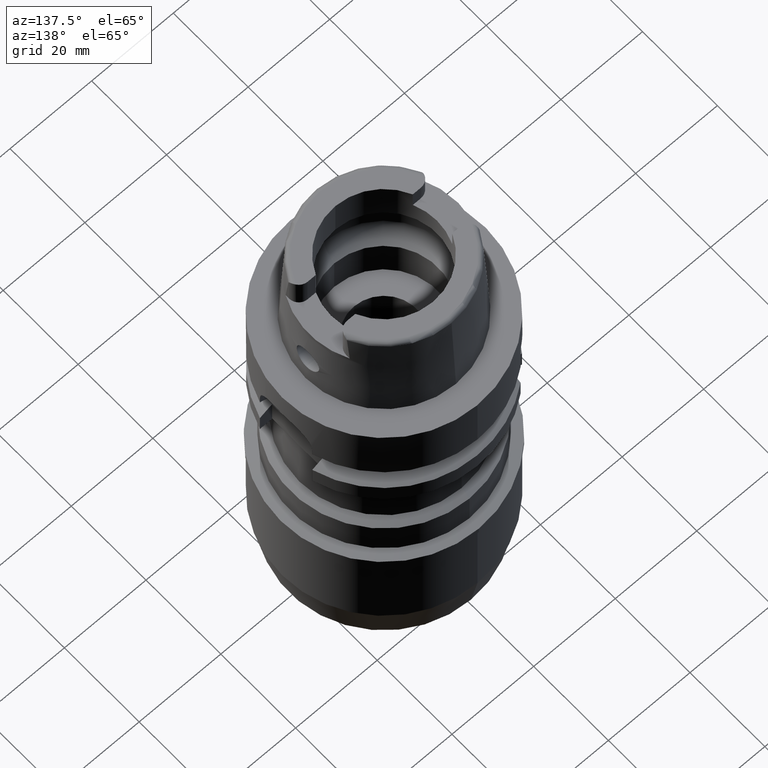
[diagram: clean part render]
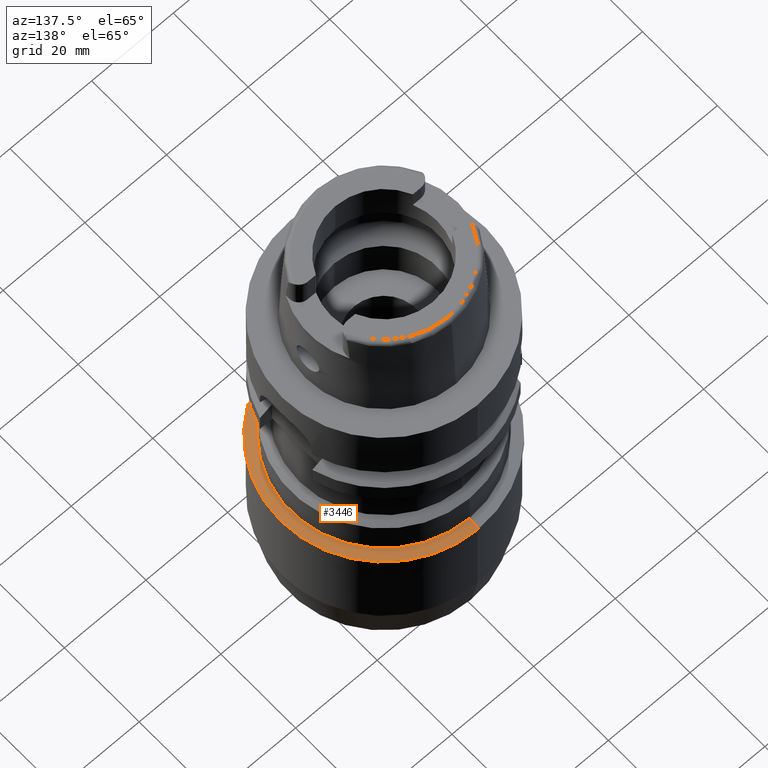
[diagram: same view with one face highlighted and labeled with its STEP entity id]
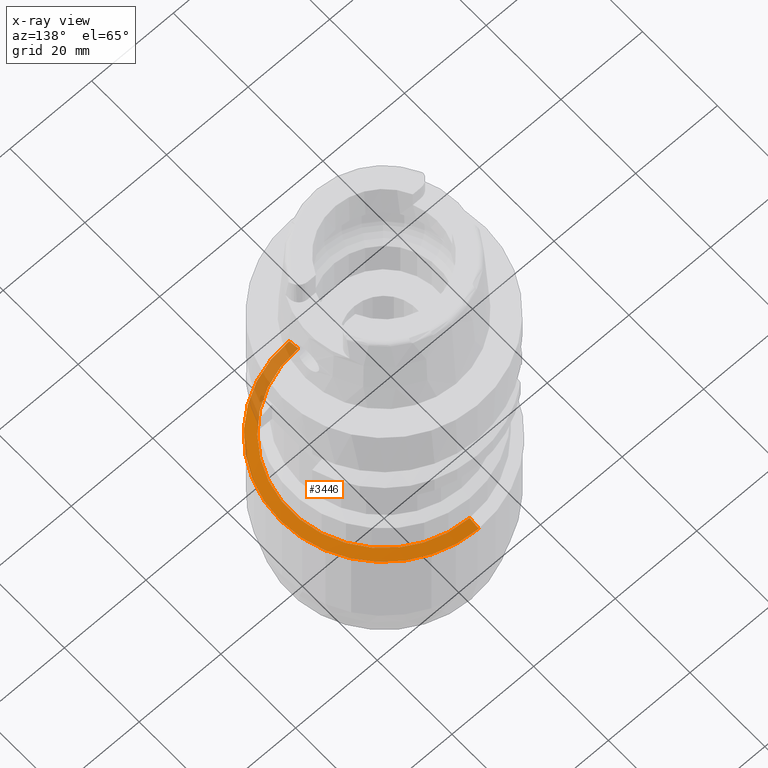
[diagram: x-ray of the same camera — body ghosted, the highlighted face saturated]
A machine part, auxiliary view. The second image highlights one B-rep face of the part: STEP entity #3446.
The next image is the same camera in x-ray: the body ghosted, the highlighted face saturated — about 19% of this face is hidden behind the body in this view.
In plain terms, the highlighted conical surface has half-angle 75 deg.
Its self-contained STEP definition (entity closure, byte-faithful):
#1089=DIRECTION('',(0.E0,9.659258262889E-1,-2.588190451032E-1));
#1090=VECTOR('',#1089,2.536426642006E0);
#1091=CARTESIAN_POINT('',(0.E0,2.29E1,-5.16E1));
#1092=LINE('',#1091,#1090);
#1096=CARTESIAN_POINT('',(0.E0,0.E0,-5.225647552146E1));
#1097=DIRECTION('',(0.E0,0.E0,-1.E0));
#1098=DIRECTION('',(0.E0,1.E0,0.E0));
#1099=AXIS2_PLACEMENT_3D('',#1096,#1097,#1098);
#1104=CARTESIAN_POINT('',(0.E0,0.E0,-5.16E1));
#1105=DIRECTION('',(0.E0,0.E0,1.E0));
#1106=DIRECTION('',(0.E0,-1.E0,0.E0));
#1107=AXIS2_PLACEMENT_3D('',#1104,#1105,#1106);
#1120=DIRECTION('',(0.E0,-9.659258262889E-1,-2.588190451032E-1));
#1121=VECTOR('',#1120,2.536426642006E0);
#1122=CARTESIAN_POINT('',(0.E0,-2.29E1,-5.16E1));
#1123=LINE('',#1122,#1121);
#2472=CARTESIAN_POINT('',(0.E0,2.535E1,-5.225647552146E1));
#2473=VERTEX_POINT('',#2472);
#2474=CARTESIAN_POINT('',(0.E0,-2.535E1,-5.225647552146E1));
#2475=VERTEX_POINT('',#2474);
#2476=CARTESIAN_POINT('',(0.E0,2.29E1,-5.16E1));
#2477=VERTEX_POINT('',#2476);
#2478=CARTESIAN_POINT('',(0.E0,-2.29E1,-5.16E1));
#2479=VERTEX_POINT('',#2478);
#3432=CARTESIAN_POINT('',(0.E0,0.E0,-5.192823776073E1));
#3433=DIRECTION('',(0.E0,0.E0,-1.E0));
#3434=DIRECTION('',(0.E0,-1.E0,0.E0));
#3435=AXIS2_PLACEMENT_3D('',#3432,#3433,#3434);
#3436=CONICAL_SURFACE('',#3435,2.4125E1,7.5E1);
#3438=ORIENTED_EDGE('',*,*,#3437,.T.);
#3439=ORIENTED_EDGE('',*,*,#3427,.T.);
#3441=ORIENTED_EDGE('',*,*,#3440,.F.);
#3443=ORIENTED_EDGE('',*,*,#3442,.T.);
#3444=EDGE_LOOP('',(#3438,#3439,#3441,#3443));
#3445=FACE_OUTER_BOUND('',#3444,.F.);
#1100=CIRCLE('',#1099,2.535E1);
#1108=CIRCLE('',#1107,2.29E1);
#3427=EDGE_CURVE('',#2473,#2475,#1100,.T.);
#3437=EDGE_CURVE('',#2477,#2473,#1092,.T.);
#3440=EDGE_CURVE('',#2479,#2475,#1123,.T.);
#3442=EDGE_CURVE('',#2479,#2477,#1108,.T.);
#3446=ADVANCED_FACE('',(#3445),#3436,.T.);